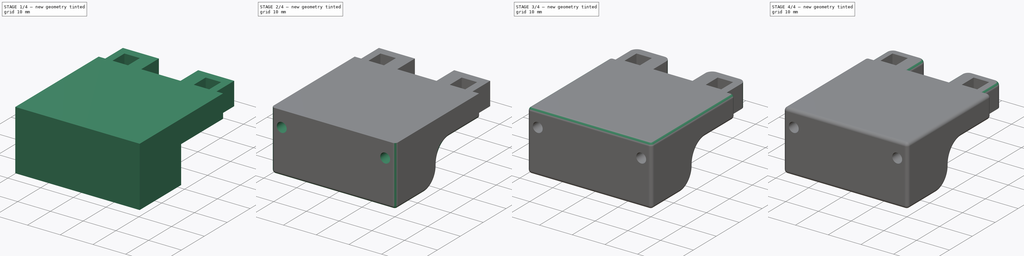
[diagram: build sequence overview — one tinted view per stage of 4, left to right]
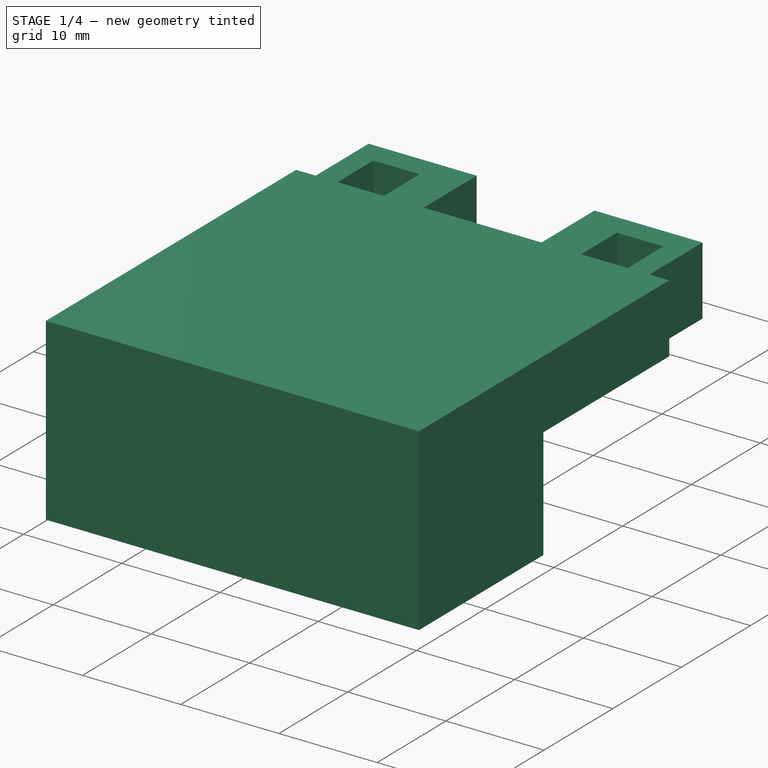
[diagram: stage 1 of 4 — iso view after this stage's code; geometry added in this stage tinted green]
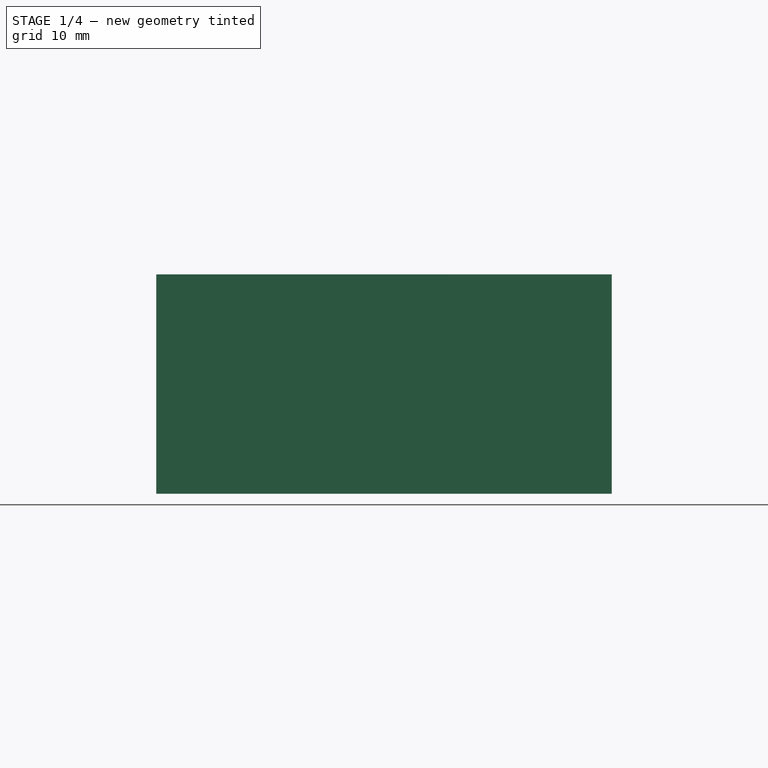
[diagram: stage 1 of 4 — front view after this stage's code; geometry added in this stage tinted green]
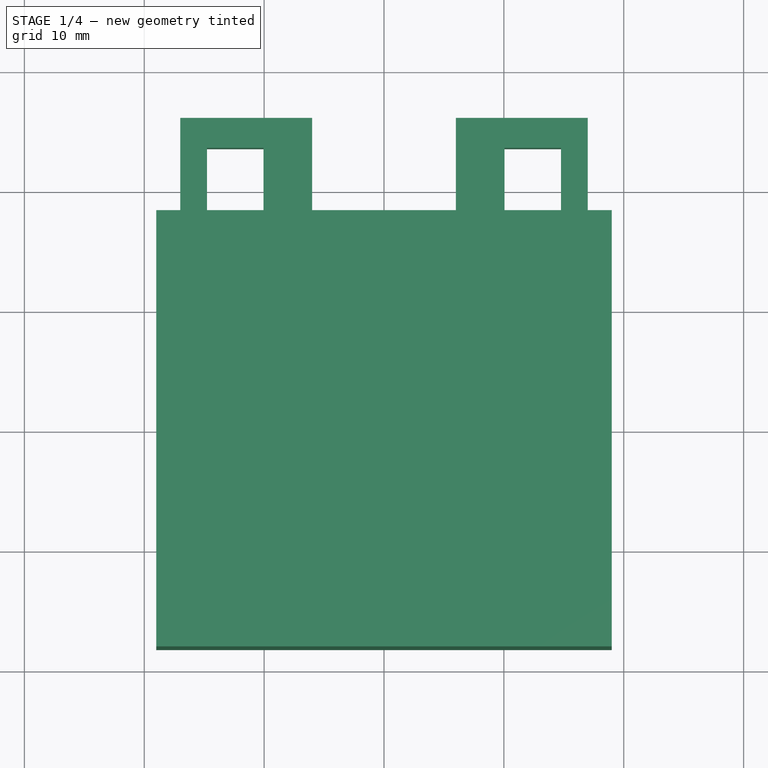
[diagram: stage 1 of 4 — top view after this stage's code; geometry added in this stage tinted green]
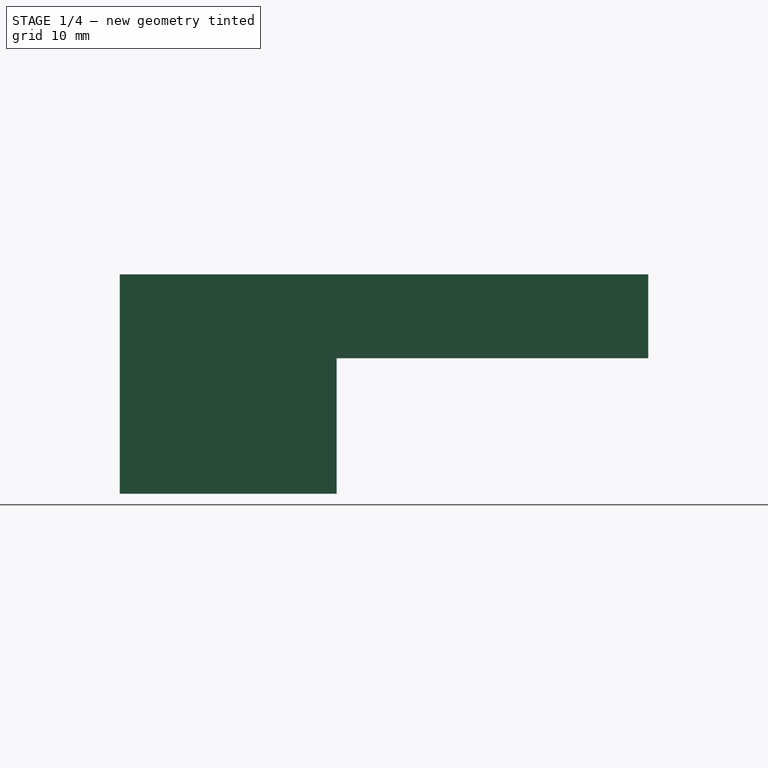
[diagram: stage 1 of 4 — right view after this stage's code; geometry added in this stage tinted green]
FCSTD DOCUMENT  (FreeCAD 1.0R39109 (Git))
Label: k1 beacon rear mount
License: All rights reserved
LicenseURL: https://en.wikipedia.org/wiki/All_rights_reserved
objects: PartDesign::Fillet×7, Part::Feature×5, Sketcher::SketchObject×3, PartDesign::Pocket×2, App::Part×2, PartDesign::Pad×1, PartDesign::SubShapeBinder×1, PartDesign::Body×1
note: 43 computed .brp shape members not serialized (recipe doc carries the construction recipe); baked Part::Feature solids carry a one-line shape summary decoded from their .brp

FEATURE [Sketcher::SketchObject] Sketch
  ArcFitTolerance = 0
  AttachmentSupport = -> [XY_Plane]
  FullyConstrained = false
  MakeInternals = false
  MapMode = 5
  sketch-geometry (20):
    g0: LineSegment StartX=-19 StartY=18.195 StartZ=0 EndX=-19 EndY=-18.195 EndZ=0
    g1: LineSegment StartX=-19 StartY=-18.195 StartZ=0 EndX=19 EndY=-18.195 EndZ=0
    g2: LineSegment StartX=19 StartY=-18.195 StartZ=0 EndX=19 EndY=18.195 EndZ=0
    g3: LineSegment StartX=19 StartY=18.195 StartZ=0 EndX=17 EndY=18.195 EndZ=0
    g4: LineSegment StartX=-6 StartY=18.195 StartZ=0 EndX=-6 EndY=25.895 EndZ=0
    g5: LineSegment StartX=-6 StartY=25.895 StartZ=0 EndX=-17 EndY=25.895 EndZ=0
    g6: LineSegment StartX=-17 StartY=25.895 StartZ=0 EndX=-17 EndY=18.195 EndZ=0
    g7: LineSegment StartX=17 StartY=18.195 StartZ=0 EndX=17 EndY=25.895 EndZ=0
    g8: LineSegment StartX=17 StartY=25.895 StartZ=0 EndX=6 EndY=25.895 EndZ=0
    g9: LineSegment StartX=6 StartY=25.895 StartZ=0 EndX=6 EndY=18.195 EndZ=0
    g10: LineSegment StartX=6 StartY=18.195 StartZ=0 EndX=-6 EndY=18.195 EndZ=0
    g11: LineSegment StartX=-17 StartY=18.195 StartZ=0 EndX=-19 EndY=18.195 EndZ=0
    g12: LineSegment StartX=-14.77 StartY=23.395 StartZ=0 EndX=-14.77 EndY=18.195 EndZ=0
    g13: LineSegment StartX=-14.77 StartY=18.195 StartZ=0 EndX=-10.05 EndY=18.195 EndZ=0
    g14: LineSegment StartX=-10.05 StartY=18.195 StartZ=0 EndX=-10.05 EndY=23.395 EndZ=0
    g15: LineSegment StartX=-10.05 StartY=23.395 StartZ=0 EndX=-14.77 EndY=23.395 EndZ=0
    g16: LineSegment StartX=10.05 StartY=23.395 StartZ=0 EndX=10.05 EndY=18.195 EndZ=0
    g17: LineSegment StartX=10.05 StartY=18.195 StartZ=0 EndX=14.77 EndY=18.195 EndZ=0
    g18: LineSegment StartX=14.77 StartY=18.195 StartZ=0 EndX=14.77 EndY=23.395 EndZ=0
    g19: LineSegment StartX=14.77 StartY=23.395 StartZ=0 EndX=10.05 EndY=23.395 EndZ=0
  constraints (59):
    c: Coincident(g0,g1)
    c: Coincident(g1,g2)
    c: Coincident(g2,g3)
    c: Coincident(g11,g0)
    c: Vertical(g0)
    c: Vertical(g2)
    c: Horizontal(g1)
    c: DistanceY(g2,g2) = 36.39
    c: DistanceX(g1,g1) = 38
    c: Symmetric(g1,g0,g-1)
    c: Coincident(g4,g5)
    c: Coincident(g5,g6)
    c: Vertical(g4)
    c: Vertical(g6)
    c: PointOnObject(g6,g11)
    c: Coincident(g7,g8)
    c: Coincident(g8,g9)
    c: Vertical(g7)
    c: Vertical(g9)
    c: PointOnObject(g9,g10)
    c: DistanceX(g8,g8) = 11
    c: Equal(g8,g5)
    c: DistanceX(g4,g9) = 12
    c: Distance(g7,g2) = 2
    c: PointOnObject(g11,g6)
    c: Coincident(g4,g10)
    c: Horizontal(g10)
    c: Horizontal(g11)
    c: Horizontal(g8)
    c: Horizontal(g5)
    c: Horizontal(g4,g8)
    c: Horizontal(g9,g3)
    c: Horizontal(g3,g2)
    c: Horizontal(g4,g6)
    c: Coincident(g12,g13)
    c: Coincident(g13,g14)
    c: Coincident(g14,g15)
    c: Coincident(g15,g12)
    c: Vertical(g12)
    c: Vertical(g14)
    c: Horizontal(g13)
    c: Horizontal(g15)
    c: Coincident(g16,g17)
    c: Coincident(g17,g18)
    c: Coincident(g18,g19)
    c: Coincident(g19,g16)
    c: Vertical(g16)
    c: Vertical(g18)
    c: Horizontal(g17)
    c: Horizontal(g19)
    c: DistanceY(g9,g16) = 0
    c: Equal(g13,g19)
    c: Distance(g19,g19) = 4.72
    c: Equal(g16,g14)
    c: DistanceY(g14,g14) = 5.2
    c: DistanceX(g13,g16) = 20.1
    c: Symmetric(g13,g16,g-2)
    c: Coincident(g3,g7)
    c: DistanceY(g6,g6) = 7.7
FEATURE [PartDesign::Pad] Pad
  Direction = (0,0,1)
  Length = 18.3
  Length2 = 10
  Profile = -> Sketch
  ReferenceAxis = -> Sketch [N_Axis]
  Refine = true
  Suppressed = false
  Type = 0
FEATURE [Sketcher::SketchObject] Sketch001
  ArcFitTolerance = 0
  AttachmentSupport = -> [Pad]
  ExternalGeometry = -> [Pad]
  FullyConstrained = true
  MakeInternals = false
  MapMode = 5
  Placement = pos=(19,0,0) rot=(0.57735,0.57735,0.57735;2.0944rad)
  expr: Constraints[2] = Pad.Length - 7 mm
  sketch-geometry (4):
    g0: LineSegment StartX=25.895 StartY=11.3 StartZ=0 EndX=25.895 EndY=0 EndZ=0
    g1: LineSegment StartX=25.895 StartY=11.3 StartZ=0 EndX=-0.105 EndY=11.3 EndZ=0
    g2: LineSegment StartX=25.895 StartY=0 StartZ=0 EndX=-0.105 EndY=0 EndZ=0
    g3: LineSegment StartX=-0.105 StartY=11.3 StartZ=0 EndX=-0.105 EndY=0 EndZ=0
  constraints (11):
    c: PointOnObject(g0,g-3)
    c: Coincident(g0,g-3)
    c: DistanceY(g0,g0) = 11.3
    c: Coincident(g1,g0)
    c: Horizontal(g1)
    c: DistanceX(g1,g1) = 26
    c: Coincident(g2,g0)
    c: PointOnObject(g2,g-1)
    c: Coincident(g3,g1)
    c: Coincident(g3,g2)
    c: DistanceX(g2,g2) = 26
FEATURE [PartDesign::Pocket] Pocket
  BaseFeature = -> Pad
  Direction = (-1,0,0)
  Length = 5
  Length2 = 5
  Profile = -> Sketch001
  ReferenceAxis = -> Sketch001 [N_Axis]
  Refine = true
  Suppressed = false
  Type = 1
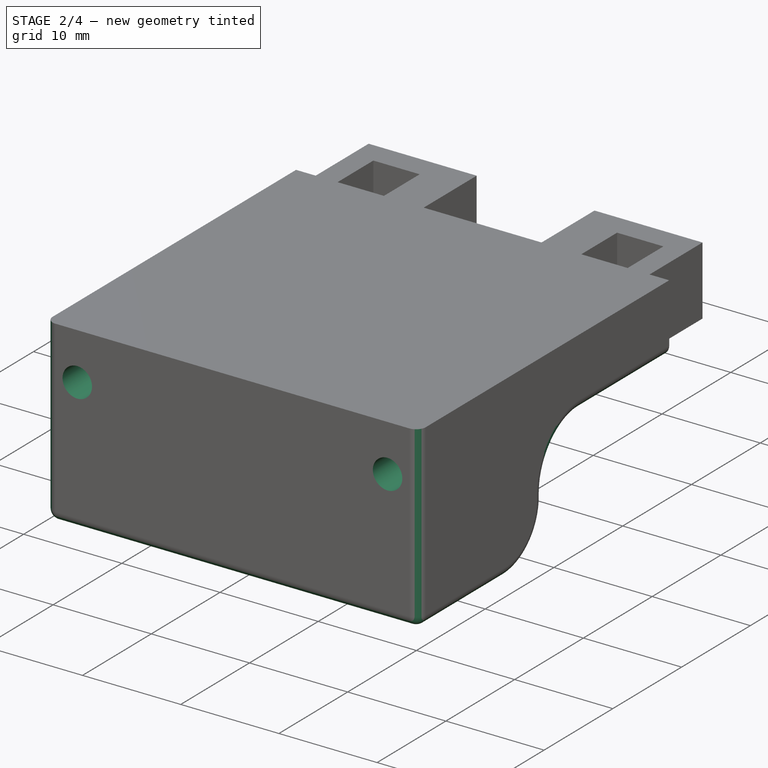
[diagram: stage 2 of 4 — iso view after this stage's code; geometry added in this stage tinted green]
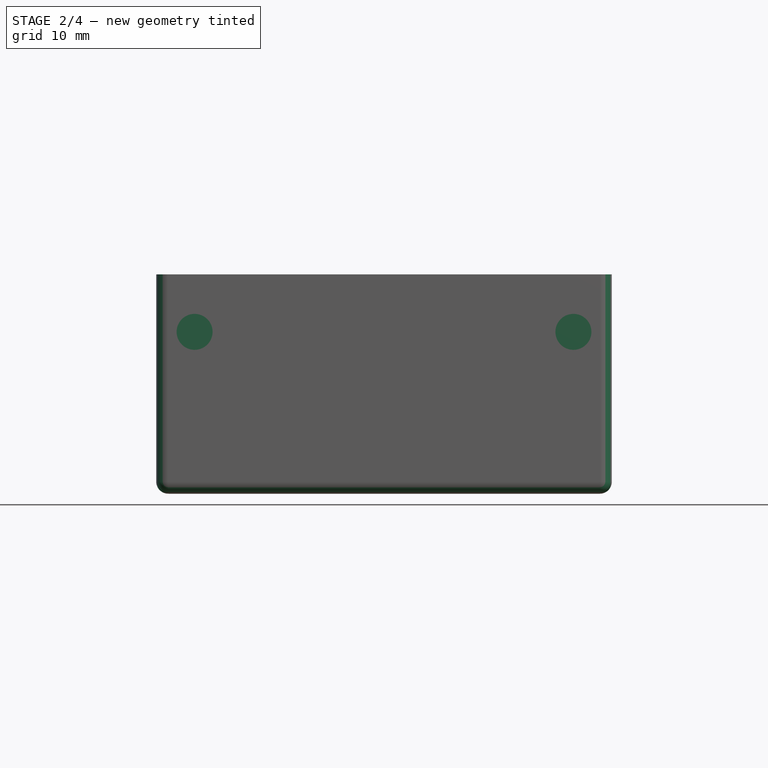
[diagram: stage 2 of 4 — front view after this stage's code; geometry added in this stage tinted green]
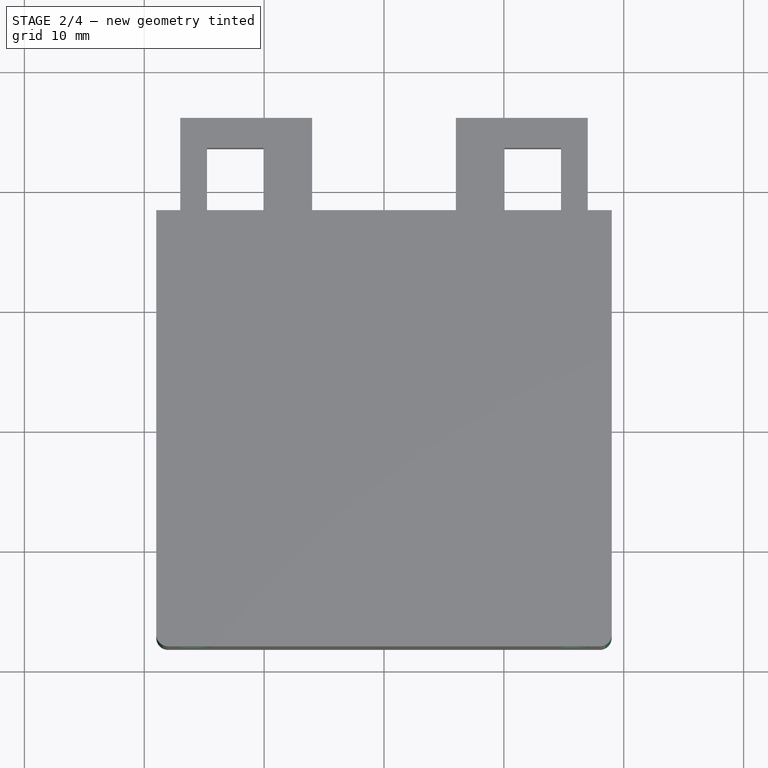
[diagram: stage 2 of 4 — top view after this stage's code; geometry added in this stage tinted green]
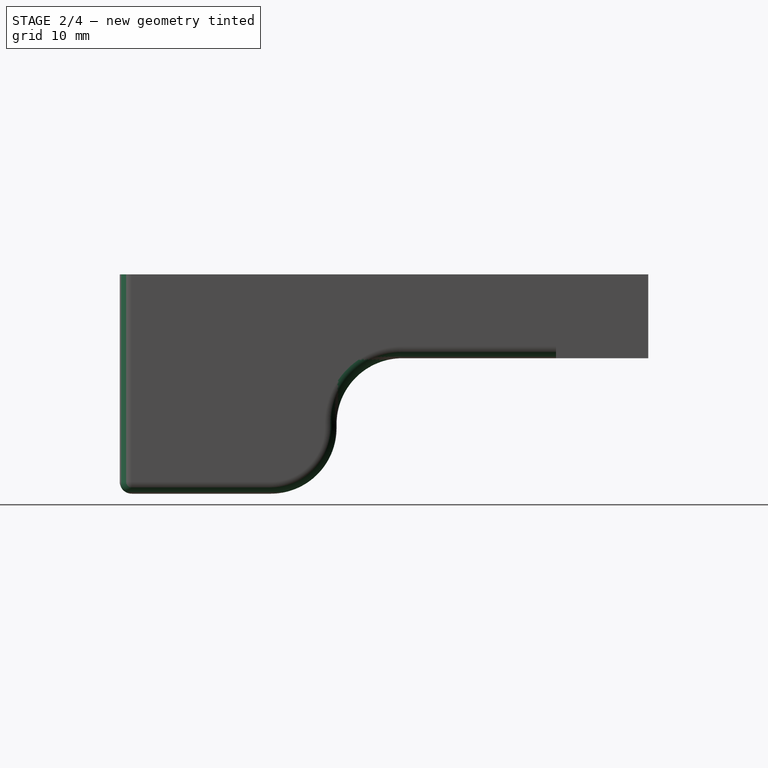
[diagram: stage 2 of 4 — right view after this stage's code; geometry added in this stage tinted green]
FEATURE [Part::Feature] Part__Feature  label="BeaconG_LP"
  shape: bbox 17 x 17 x 2.6 mm, 4 faces (baked)
FEATURE [Part::Feature] Part__Feature001  label="BeaconG_LP001"
  shape: bbox 18.75 x 18.75 x 20 mm, 4 faces (baked)
FEATURE [Part::Feature] Part__Feature002  label="BeaconG_LP002"
  shape: bbox 38 x 7.762 x 1.1 mm, 10 faces (baked)
FEATURE [Part::Feature] Part__Feature003  label="BeaconG_LP003"
  shape: bbox 38 x 27.5 x 1.611 mm, 18 faces (baked)
FEATURE [App::Part] BeaconG_LP  label="BeaconG_LP004"
  Group = -> [Part__Feature,Part__Feature001,Part__Feature002,Part__Feature003]
  Origin = -> Origin001
FEATURE [Part::Feature] Part__Feature004  label="353620450"
  Placement = pos=(4e-16,-16.1345,4.25) rot=(0,0.707107,0.707107;3.14159rad)
  shape: bbox 10.3 x 5.55 x 11.8 mm, 178 faces (baked)
FEATURE [App::Part] Beacon_Rev_H_Assm  label="Beacon Rev H Assm"
  Group = -> [BeaconG_LP,Part__Feature004]
  Origin = -> Origin002
  Placement = pos=(-1e-16,-18,10) rot=(1,0,0;4.71239rad)
FEATURE [PartDesign::SubShapeBinder] Binder
  BindCopyOnChange = 0
  BindMode = 0
  ClaimChildren = false
  Context = -> Body [Binder.]
  Fuse = false
  MakeFace = true
  OffsetFill = false
  OffsetIntersection = false
  OffsetJoinType = 0
  OffsetOpenResult = false
  PartialLoad = false
  Refine = true
  Relative = true
  Support = -> [Beacon_Rev_H_Assm]
  _Version = 2
FEATURE [Sketcher::SketchObject] Sketch002
  ArcFitTolerance = 1e-06
  AttachmentSupport = -> [Pocket]
  ExternalGeometry = -> [Binder]
  FullyConstrained = true
  MakeInternals = false
  MapMode = 5
  Placement = pos=(0,-18.195,0) rot=(1,0,0;1.5708rad)
  sketch-geometry (2):
    g0: Circle CenterX=-15.8 CenterY=13.5 CenterZ=0 NormalX=0 NormalY=0 NormalZ=1 AngleXU=0 Radius=1.5
    g1: Circle CenterX=15.8 CenterY=13.5 CenterZ=0 NormalX=0 NormalY=0 NormalZ=1 AngleXU=0 Radius=1.5
  constraints (4):
    c: Coincident(g0,g-3)
    c: Coincident(g1,g-4)
    c: Equal(g1,g0)
    c: Diameter(g0) = 3
FEATURE [PartDesign::Pocket] Pocket001
  BaseFeature = -> Pocket
  Direction = (0,1,-2e-16)
  Length = 5
  Length2 = 5
  Profile = -> Sketch002
  ReferenceAxis = -> Sketch002 [N_Axis]
  Refine = true
  Suppressed = false
  Type = 0
FEATURE [PartDesign::Fillet] Fillet
  Base = -> Pocket001 [Edge10,Edge27]
  BaseFeature = -> Pocket001
  Radius = 5.49
  Refine = true
  SupportTransform = false
  Suppressed = false
  UseAllEdges = false
FEATURE [PartDesign::Fillet] Fillet001
  Base = -> Fillet [Edge58,Edge52,Edge28,Edge9,Edge1,Edge2,Edge6,Edge8,Edge54,Edge55,Edge7]
  BaseFeature = -> Fillet
  Radius = 1
  Refine = true
  SupportTransform = false
  Suppressed = false
  UseAllEdges = false
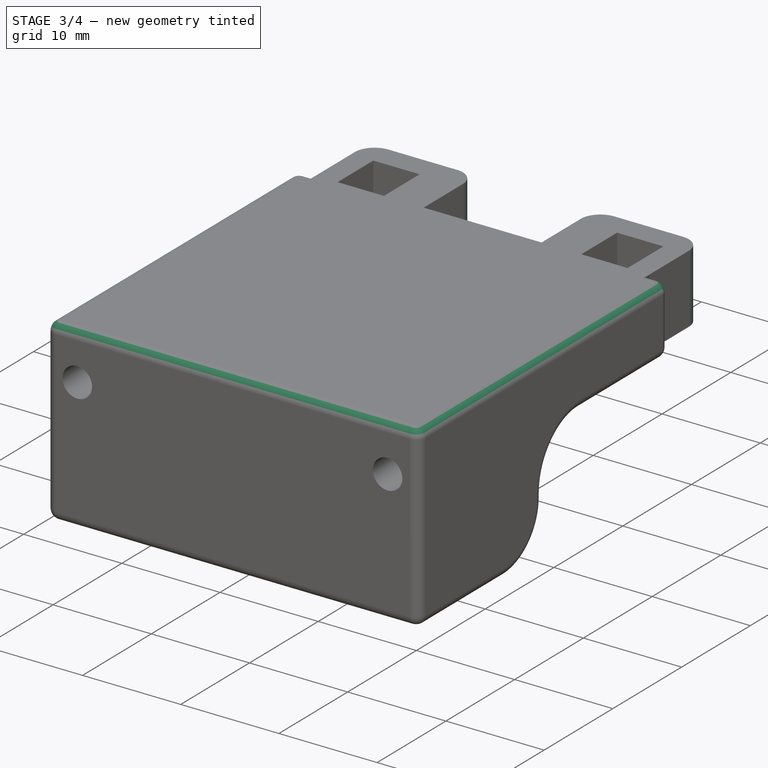
[diagram: stage 3 of 4 — iso view after this stage's code; geometry added in this stage tinted green]
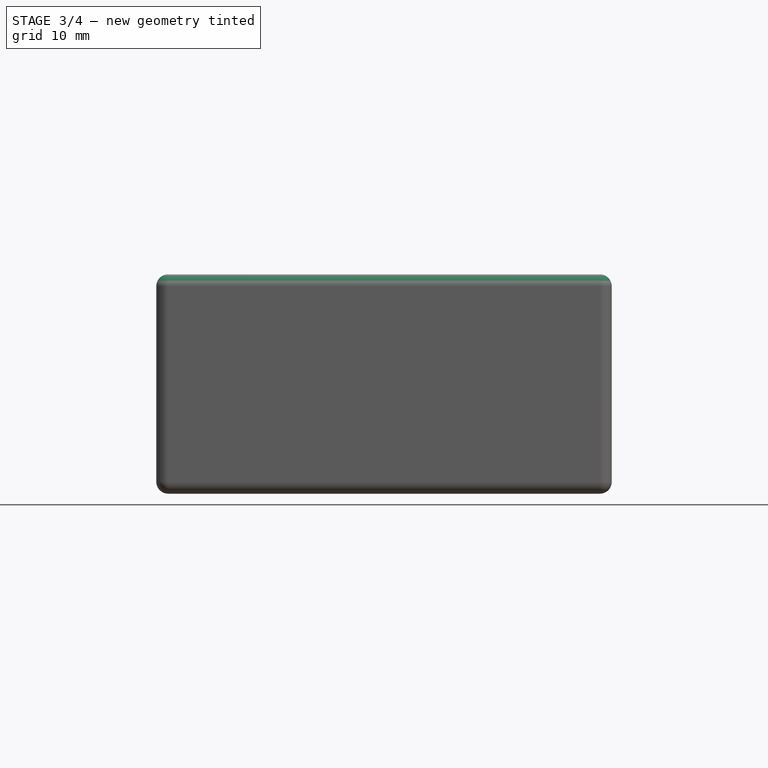
[diagram: stage 3 of 4 — front view after this stage's code; geometry added in this stage tinted green]
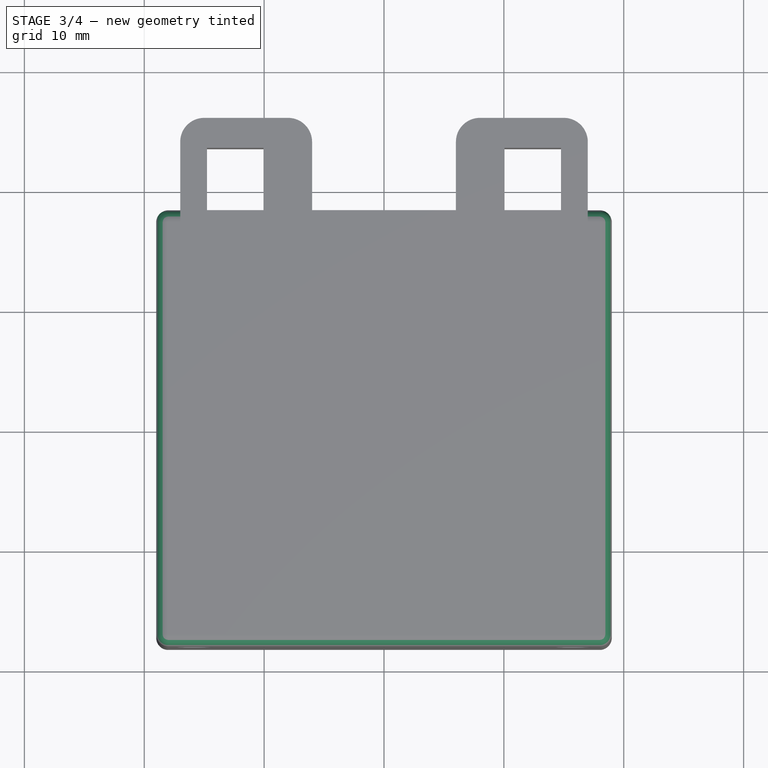
[diagram: stage 3 of 4 — top view after this stage's code; geometry added in this stage tinted green]
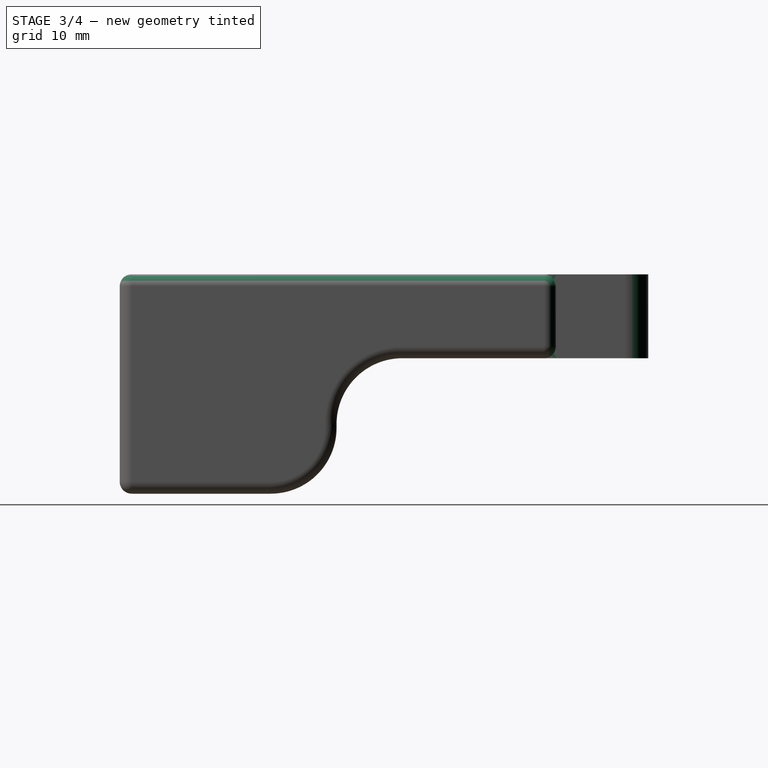
[diagram: stage 3 of 4 — right view after this stage's code; geometry added in this stage tinted green]
FEATURE [PartDesign::Fillet] Fillet002
  Base = -> Fillet001 [Edge63,Edge70,Edge82,Edge81]
  BaseFeature = -> Fillet001
  Radius = 2
  Refine = true
  SupportTransform = false
  Suppressed = false
  UseAllEdges = false
FEATURE [PartDesign::Fillet] Fillet003
  Base = -> Fillet002 [Edge59,Edge34]
  BaseFeature = -> Fillet002
  Radius = 1
  Refine = true
  SupportTransform = false
  Suppressed = false
  UseAllEdges = false
FEATURE [PartDesign::Fillet] Fillet004
  Base = -> Fillet003 [Edge12,Edge8,Edge4]
  BaseFeature = -> Fillet003
  Radius = 1
  Refine = true
  SupportTransform = false
  Suppressed = false
  UseAllEdges = false
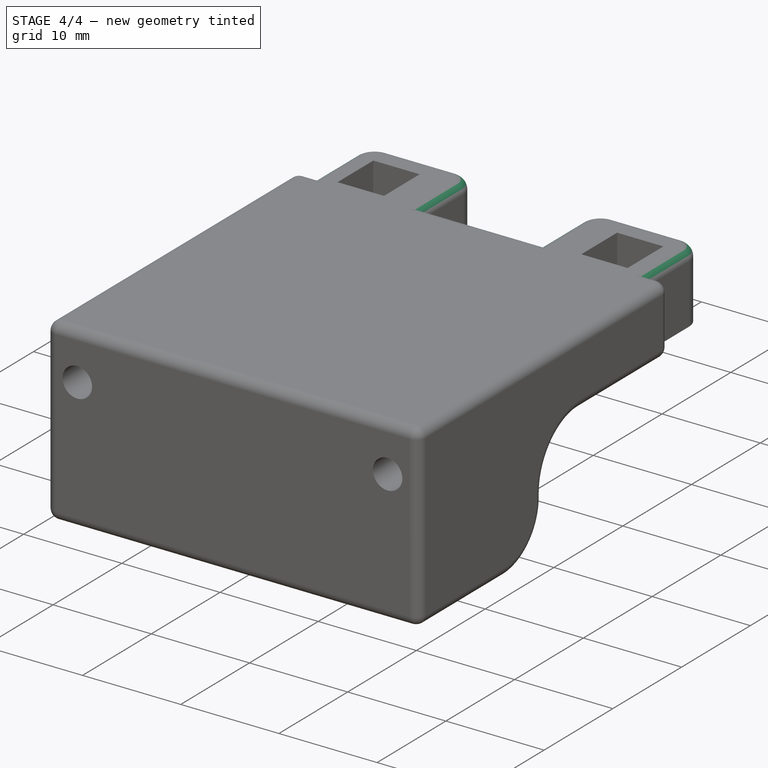
[diagram: stage 4 of 4 — iso view after this stage's code; geometry added in this stage tinted green]
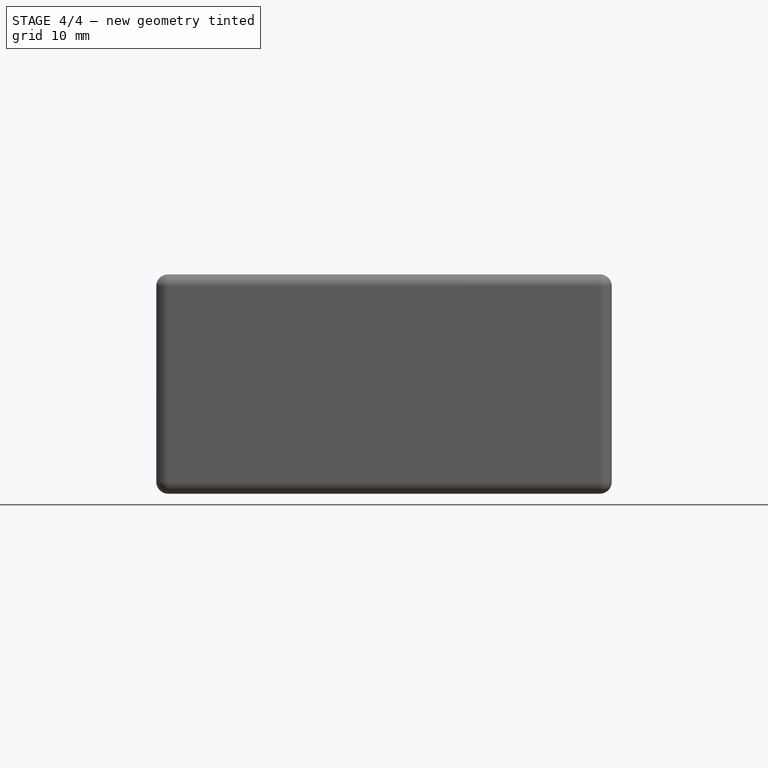
[diagram: stage 4 of 4 — front view after this stage's code; geometry added in this stage tinted green]
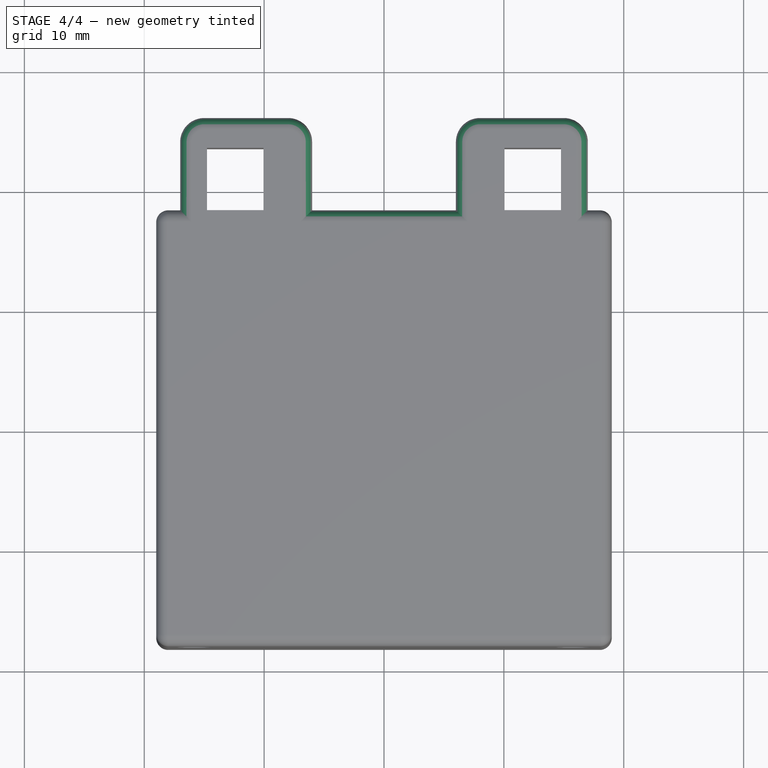
[diagram: stage 4 of 4 — top view after this stage's code; geometry added in this stage tinted green]
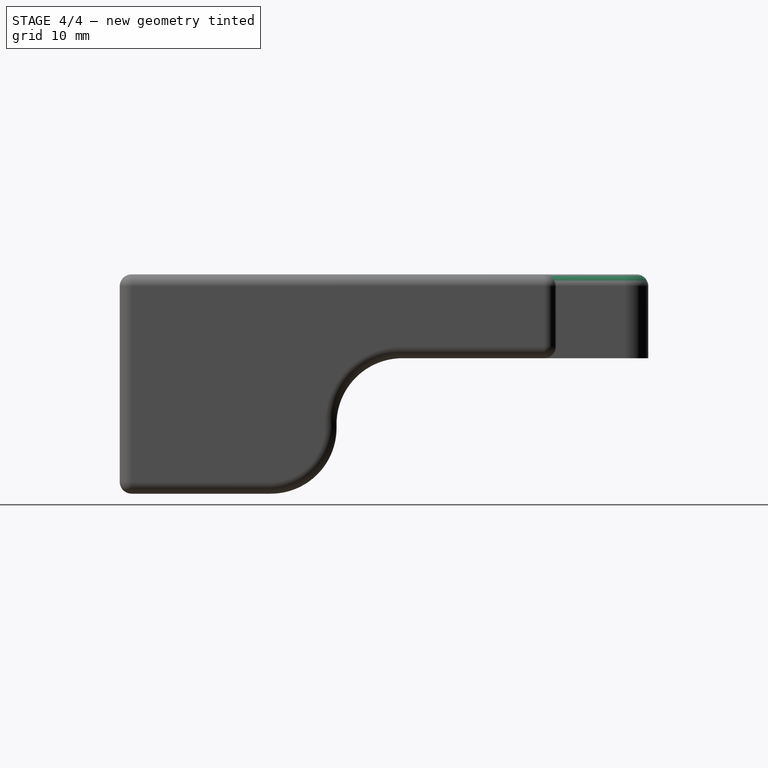
[diagram: stage 4 of 4 — right view after this stage's code; geometry added in this stage tinted green]
FEATURE [PartDesign::Fillet] Fillet005
  Base = -> Fillet004 [Edge10,Edge8,Edge6,Edge4,Edge2,Edge14,Edge16,Edge18,Edge17,Edge15,Edge12]
  BaseFeature = -> Fillet004
  Radius = 1
  Refine = true
  SupportTransform = false
  Suppressed = false
  UseAllEdges = false
FEATURE [PartDesign::Fillet] Fillet006
  Base = -> Fillet005 [Edge120]
  BaseFeature = -> Fillet005
  Radius = 1
  Refine = true
  SupportTransform = false
  Suppressed = false
  UseAllEdges = false
FEATURE [PartDesign::Body] Body
  AllowCompound = false
  Group = -> [Sketch,Pad,Sketch001,Pocket,Sketch002,Binder,Pocket001,Fillet,Fillet001,Fillet002,Fillet003,Fillet004,Fillet005,Fillet006]
  Origin = -> Origin
  Tip = -> Fillet006
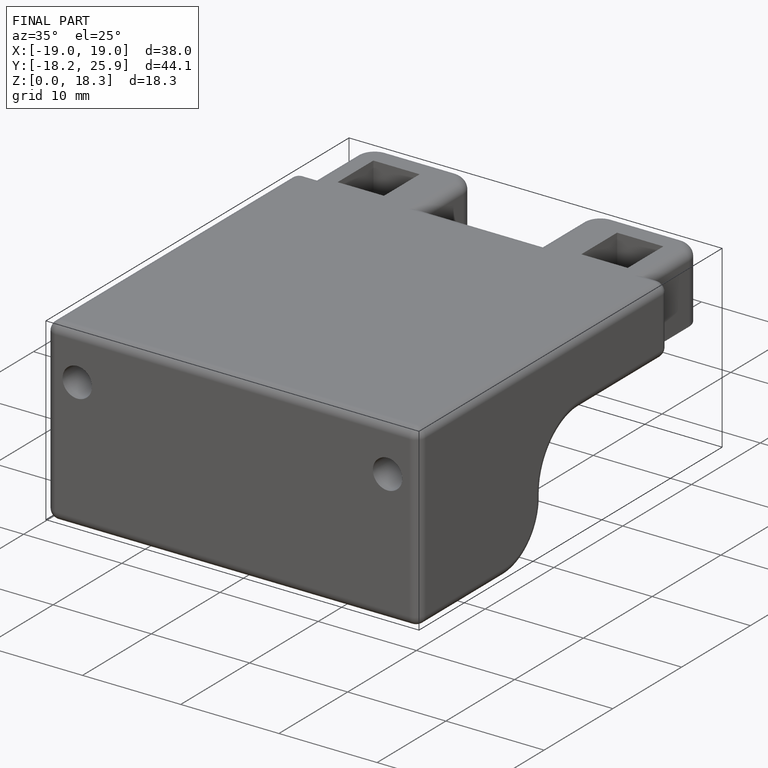
[diagram: finished part — iso view with bounding-box wireframe]
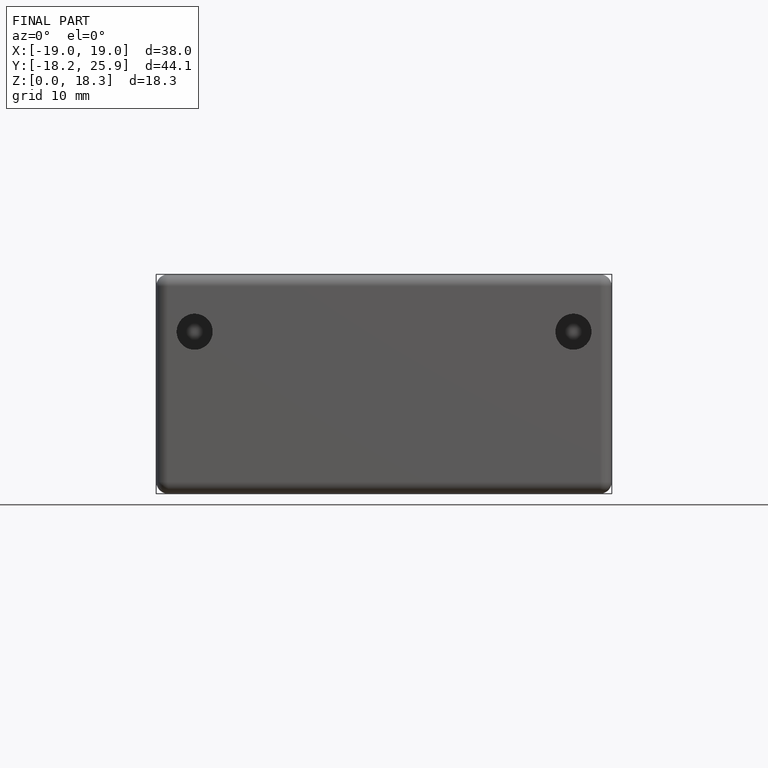
[diagram: finished part — front view with bounding-box wireframe]
